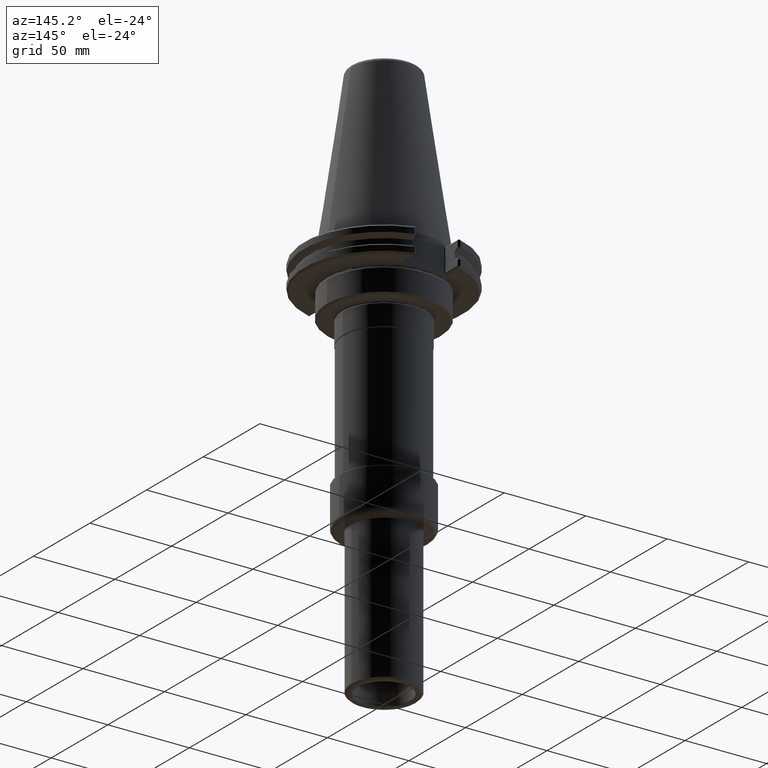
[diagram: clean part render]
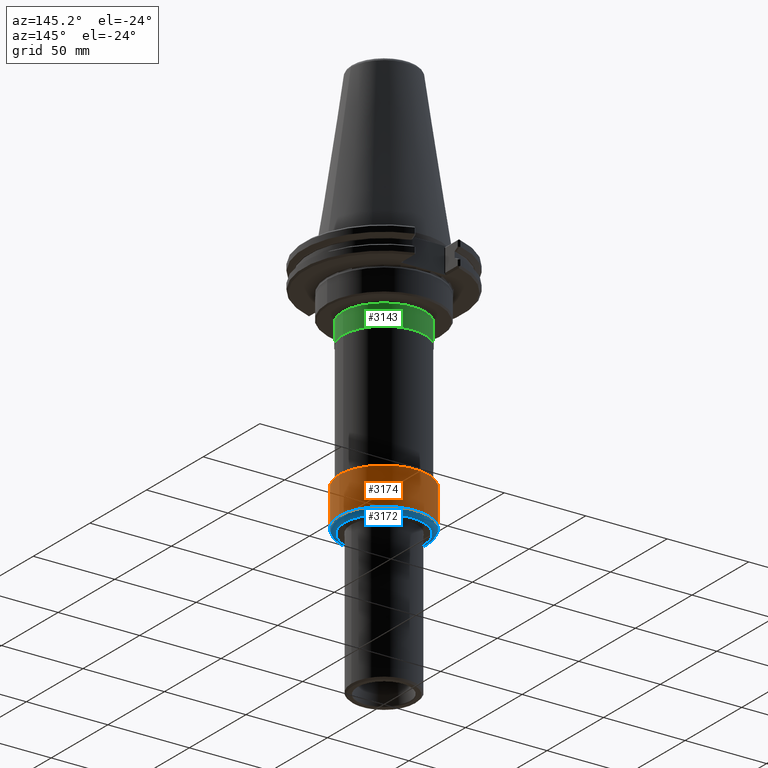
[diagram: same view with three faces highlighted in distinct colors, each labeled with its STEP entity id]
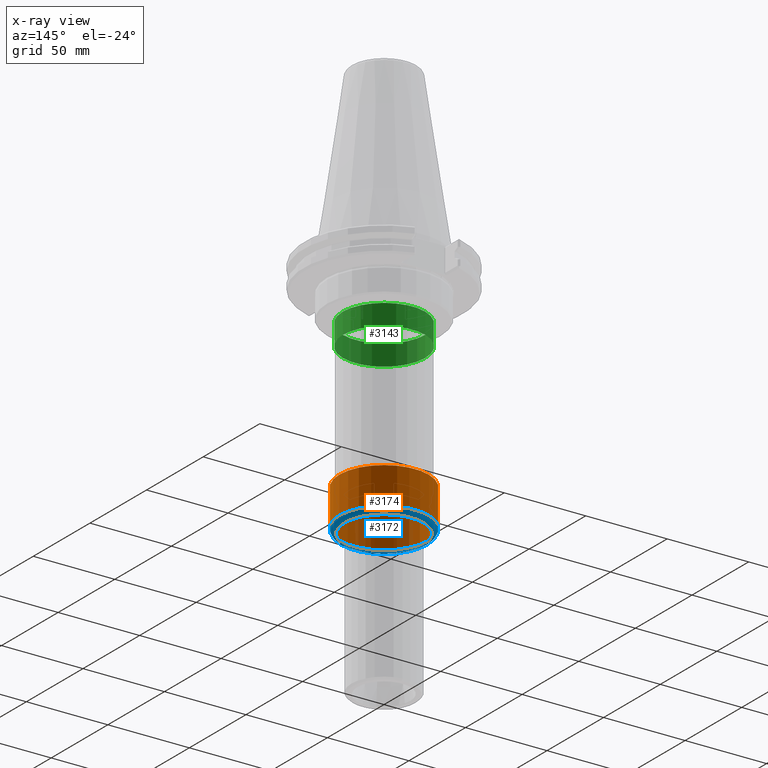
[diagram: x-ray of the same camera — body ghosted, the three highlighted faces saturated]
A machine part, auxiliary view with three faces highlighted in distinct colors.
The next image is the same camera in x-ray (body ghosted, the three faces saturated) — at least one of them is partly hidden behind the body in this view.
Their STEP definitions:

[orange] entity #3174 — the highlighted cylindrical surface (bore or boss wall) has radius 27.4 mm, axis along (0, 0, 1).
#299=CYLINDRICAL_SURFACE('',#3451,27.4);
#840=ORIENTED_EDGE('',*,*,#1131,.F.);
#841=ORIENTED_EDGE('',*,*,#1127,.F.);
#1127=EDGE_CURVE('',#1333,#1333,#1465,.T.);
#1131=EDGE_CURVE('',#1337,#1337,#1469,.T.);
#1333=VERTEX_POINT('',#4938);
#1337=VERTEX_POINT('',#4951);
#1465=CIRCLE('',#3439,27.4);
#1469=CIRCLE('',#3448,27.4);
#1681=EDGE_LOOP('',(#840));
#1682=EDGE_LOOP('',(#841));
#1915=FACE_BOUND('',#1681,.T.);
#1916=FACE_BOUND('',#1682,.T.);
#3174=ADVANCED_FACE('',(#1915,#1916),#299,.T.);
#3439=AXIS2_PLACEMENT_3D('',#4937,#4040,#4041);
#3448=AXIS2_PLACEMENT_3D('',#4950,#4058,#4059);
#3451=AXIS2_PLACEMENT_3D('',#4955,#4064,#4065);
#4040=DIRECTION('',(0.,0.,1.));
#4041=DIRECTION('',(1.,0.,0.));
#4058=DIRECTION('',(0.,0.,-1.));
#4059=DIRECTION('',(-1.,0.,0.));
#4064=DIRECTION('',(0.,0.,1.));
#4065=DIRECTION('',(1.,0.,0.));
#4937=CARTESIAN_POINT('',(2.28105110970917E-32,-4.43398897304147E-16,-126.637564434702));
#4938=CARTESIAN_POINT('',(27.4,-4.43398897304147E-16,-126.637564434702));
#4950=CARTESIAN_POINT('',(2.28105110970917E-32,-4.43398897304147E-16,-149.387564434702));
#4951=CARTESIAN_POINT('',(-27.4,-4.43398897304147E-16,-149.387564434702));
#4955=CARTESIAN_POINT('',(2.28105110970917E-32,-4.43398897304147E-16,-181.887564434702));

[blue] entity #3172 — the highlighted toroidal blend (fillet) surface has major radius 24.4 mm and minor (blend) radius 3 mm.
#257=TOROIDAL_SURFACE('',#3447,24.4,3.);
#836=ORIENTED_EDGE('',*,*,#1131,.T.);
#837=ORIENTED_EDGE('',*,*,#1132,.F.);
#1131=EDGE_CURVE('',#1337,#1337,#1469,.T.);
#1132=EDGE_CURVE('',#1338,#1338,#1470,.T.);
#1337=VERTEX_POINT('',#4951);
#1338=VERTEX_POINT('',#4953);
#1469=CIRCLE('',#3448,27.4);
#1470=CIRCLE('',#3449,24.4);
#1677=EDGE_LOOP('',(#836));
#1678=EDGE_LOOP('',(#837));
#1911=FACE_BOUND('',#1677,.T.);
#1912=FACE_BOUND('',#1678,.T.);
#3172=ADVANCED_FACE('',(#1911,#1912),#257,.T.);
#3447=AXIS2_PLACEMENT_3D('',#4949,#4056,#4057);
#3448=AXIS2_PLACEMENT_3D('',#4950,#4058,#4059);
#3449=AXIS2_PLACEMENT_3D('',#4952,#4060,#4061);
#4056=DIRECTION('',(0.,0.,-1.));
#4057=DIRECTION('',(-1.,0.,0.));
#4058=DIRECTION('',(0.,0.,-1.));
#4059=DIRECTION('',(-1.,0.,0.));
#4060=DIRECTION('',(0.,0.,-1.));
#4061=DIRECTION('',(-1.,0.,0.));
#4949=CARTESIAN_POINT('',(2.28105110970917E-32,-4.43398897304147E-16,-149.387564434702));
#4950=CARTESIAN_POINT('',(2.28105110970917E-32,-4.43398897304147E-16,-149.387564434702));
#4951=CARTESIAN_POINT('',(-27.4,-4.43398897304147E-16,-149.387564434702));
#4952=CARTESIAN_POINT('',(2.28105110970917E-32,-4.43398897304147E-16,-152.387564434702));
#4953=CARTESIAN_POINT('',(-24.4,-4.43398897304147E-16,-152.387564434702));

[green] entity #3143 — the highlighted cylindrical surface (bore or boss wall) has radius 25.25 mm, axis along (0, 0, 1).
#288=CYLINDRICAL_SURFACE('',#3390,25.25);
#778=ORIENTED_EDGE('',*,*,#1102,.T.);
#779=ORIENTED_EDGE('',*,*,#1089,.T.);
#1089=EDGE_CURVE('',#1295,#1295,#1427,.T.);
#1102=EDGE_CURVE('',#1308,#1308,#1440,.T.);
#1295=VERTEX_POINT('',#4824);
#1308=VERTEX_POINT('',#4863);
#1427=CIRCLE('',#3363,25.25);
#1440=CIRCLE('',#3389,25.25);
#1619=EDGE_LOOP('',(#778));
#1620=EDGE_LOOP('',(#779));
#1853=FACE_BOUND('',#1619,.T.);
#1854=FACE_BOUND('',#1620,.T.);
#3143=ADVANCED_FACE('',(#1853,#1854),#288,.T.);
#3363=AXIS2_PLACEMENT_3D('',#4823,#3888,#3889);
#3389=AXIS2_PLACEMENT_3D('',#4862,#3940,#3941);
#3390=AXIS2_PLACEMENT_3D('',#4864,#3942,#3943);
#3888=DIRECTION('',(0.,0.,-1.));
#3889=DIRECTION('',(-1.,0.,0.));
#3940=DIRECTION('',(0.,0.,1.));
#3941=DIRECTION('',(1.,0.,0.));
#3942=DIRECTION('',(0.,0.,1.));
#3943=DIRECTION('',(1.,0.,0.));
#4823=CARTESIAN_POINT('',(4.09859243949483E-16,0.,-36.197369750301));
#4824=CARTESIAN_POINT('',(-25.25,0.,-36.197369750301));
#4862=CARTESIAN_POINT('',(0.,0.,-49.));
#4863=CARTESIAN_POINT('',(25.25,0.,-49.));
#4864=CARTESIAN_POINT('',(0.,0.,-47.4330127018922));